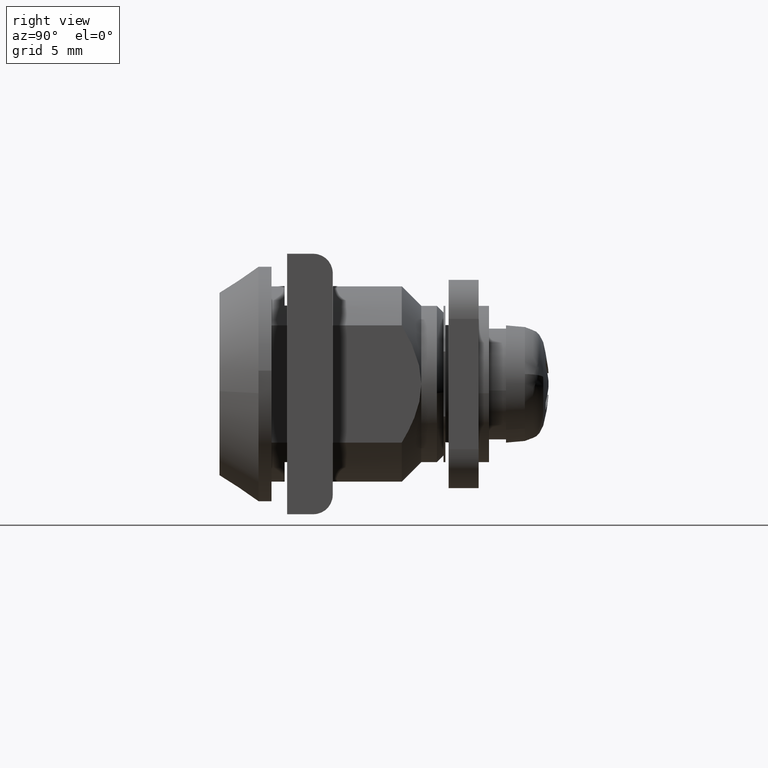
[diagram: clean part render]
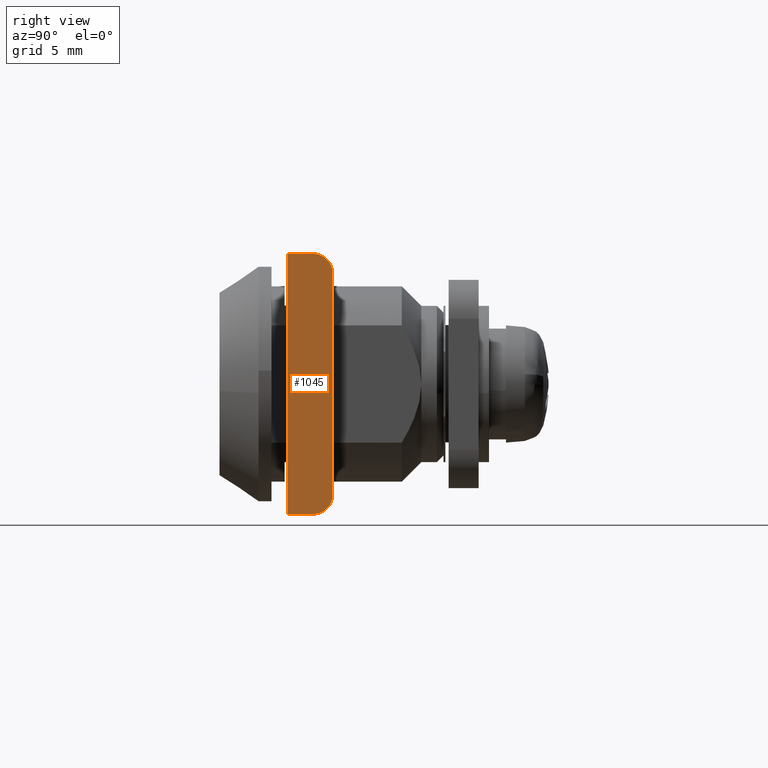
[diagram: same view with one face highlighted and labeled with its STEP entity id]
A machine part, right view. The second image highlights one B-rep face of the part: STEP entity #1045.
In plain terms, the highlighted face is a freeform B-spline surface patch.
Its self-contained STEP definition (entity closure, byte-faithful):
#75=CARTESIAN_POINT('',(11.0,7.199999999999799,10.0));
#76=VERTEX_POINT('',#75);
#82=CARTESIAN_POINT('',(11.0,8.699999999999800,8.500000000000000));
#83=VERTEX_POINT('',#82);
#84=CARTESIAN_POINT('',(11.0,8.699999999999800,8.500000000000000));
#85=CARTESIAN_POINT('',(11.0,8.699999999999802,10.000000000000002));
#86=CARTESIAN_POINT('',(11.0,7.199999999999799,10.0));
#94=(BOUNDED_CURVE()B_SPLINE_CURVE(2,(#84,#85,#86),.UNSPECIFIED.,.F.,.U.)CURVE()GEOMETRIC_REPRESENTATION_ITEM()QUASI_UNIFORM_CURVE()RATIONAL_B_SPLINE_CURVE((1.0,0.707106781186548,1.0))REPRESENTATION_ITEM(''));
#95=EDGE_CURVE('',#83,#76,#94,.T.);
#136=CARTESIAN_POINT('',(11.0,8.699999999999800,-8.500000000000000));
#137=VERTEX_POINT('',#136);
#143=CARTESIAN_POINT('',(11.0,7.199999999999799,-10.0));
#144=VERTEX_POINT('',#143);
#145=CARTESIAN_POINT('',(11.0,7.199999999999799,-10.0));
#146=CARTESIAN_POINT('',(11.0,8.699999999999802,-10.000000000000002));
#147=CARTESIAN_POINT('',(11.0,8.699999999999800,-8.500000000000000));
#155=(BOUNDED_CURVE()B_SPLINE_CURVE(2,(#145,#146,#147),.UNSPECIFIED.,.F.,.U.)CURVE()GEOMETRIC_REPRESENTATION_ITEM()QUASI_UNIFORM_CURVE()RATIONAL_B_SPLINE_CURVE((1.0,0.707106781186548,1.0))REPRESENTATION_ITEM(''));
#156=EDGE_CURVE('',#144,#137,#155,.T.);
#737=CARTESIAN_POINT('',(11.0,5.200000000000000,10.0));
#738=VERTEX_POINT('',#737);
#739=CARTESIAN_POINT('',(11.0,7.199999999999799,10.0));
#740=CARTESIAN_POINT('',(11.0,5.200000000000000,10.0));
#741=QUASI_UNIFORM_CURVE('',1,(#739,#740),.UNSPECIFIED.,.F.,.U.);
#742=EDGE_CURVE('',#76,#738,#741,.T.);
#883=CARTESIAN_POINT('',(11.0,5.200000000000000,-10.0));
#884=VERTEX_POINT('',#883);
#885=CARTESIAN_POINT('',(11.0,7.199999999999799,-10.0));
#886=CARTESIAN_POINT('',(11.0,5.200000000000000,-10.0));
#887=QUASI_UNIFORM_CURVE('',1,(#885,#886),.UNSPECIFIED.,.F.,.U.);
#888=EDGE_CURVE('',#144,#884,#887,.T.);
#1020=CARTESIAN_POINT('',(11.0,5.200000000000000,-10.0));
#1021=CARTESIAN_POINT('',(11.0,5.200000000000000,10.0));
#1022=QUASI_UNIFORM_CURVE('',1,(#1020,#1021),.UNSPECIFIED.,.F.,.U.);
#1023=EDGE_CURVE('',#884,#738,#1022,.T.);
#1028=CARTESIAN_POINT('',(11.0,8.874824796083136,-10.998999961236120));
#1029=CARTESIAN_POINT('',(11.0,5.025174922284717,-10.998999961236120));
#1030=CARTESIAN_POINT('',(11.0,8.874824796083136,10.999000497677921));
#1031=CARTESIAN_POINT('',(11.0,5.025174922284717,10.999000497677921));
#1032=B_SPLINE_SURFACE_WITH_KNOTS('',1,1,((#1028,#1030),(#1029,#1031)),.UNSPECIFIED.,.F.,.F.,.U.,(2,2),(2,2),(0.0,3.849649873798419),(0.0,21.998000458914039),.UNSPECIFIED.);
#1033=ORIENTED_EDGE('',*,*,#888,.F.);
#1034=ORIENTED_EDGE('',*,*,#156,.T.);
#1035=CARTESIAN_POINT('',(11.0,8.699999999999800,-8.500000000000000));
#1036=CARTESIAN_POINT('',(11.0,8.699999999999800,8.500000000000000));
#1037=QUASI_UNIFORM_CURVE('',1,(#1035,#1036),.UNSPECIFIED.,.F.,.U.);
#1038=EDGE_CURVE('',#137,#83,#1037,.T.);
#1039=ORIENTED_EDGE('',*,*,#1038,.T.);
#1040=ORIENTED_EDGE('',*,*,#95,.T.);
#1041=ORIENTED_EDGE('',*,*,#742,.T.);
#1042=ORIENTED_EDGE('',*,*,#1023,.F.);
#1043=EDGE_LOOP('',(#1033,#1034,#1039,#1040,#1041,#1042));
#1044=FACE_OUTER_BOUND('',#1043,.T.);
#1045=ADVANCED_FACE('',(#1044),#1032,.F.);